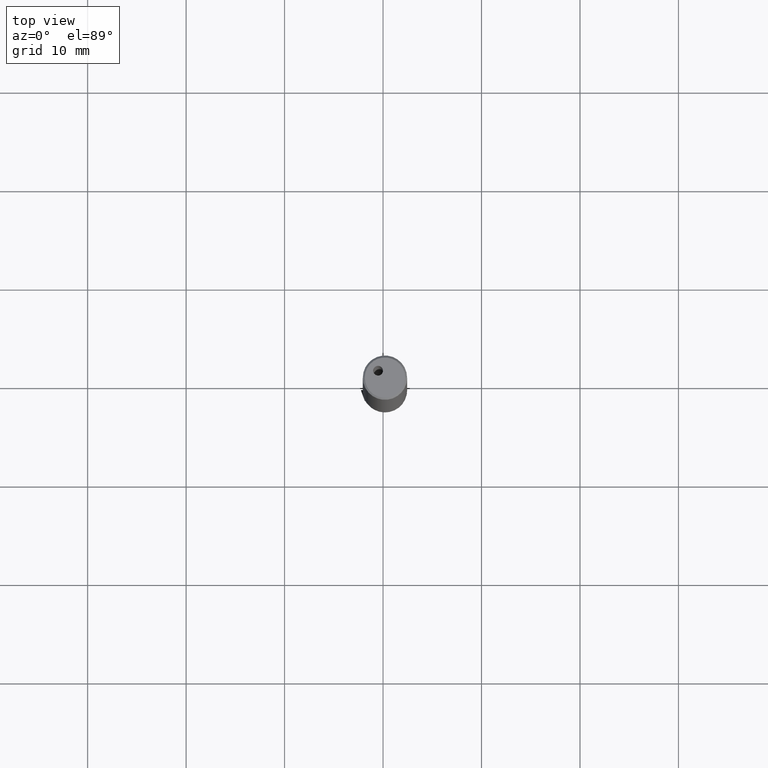
[diagram: clean part render]
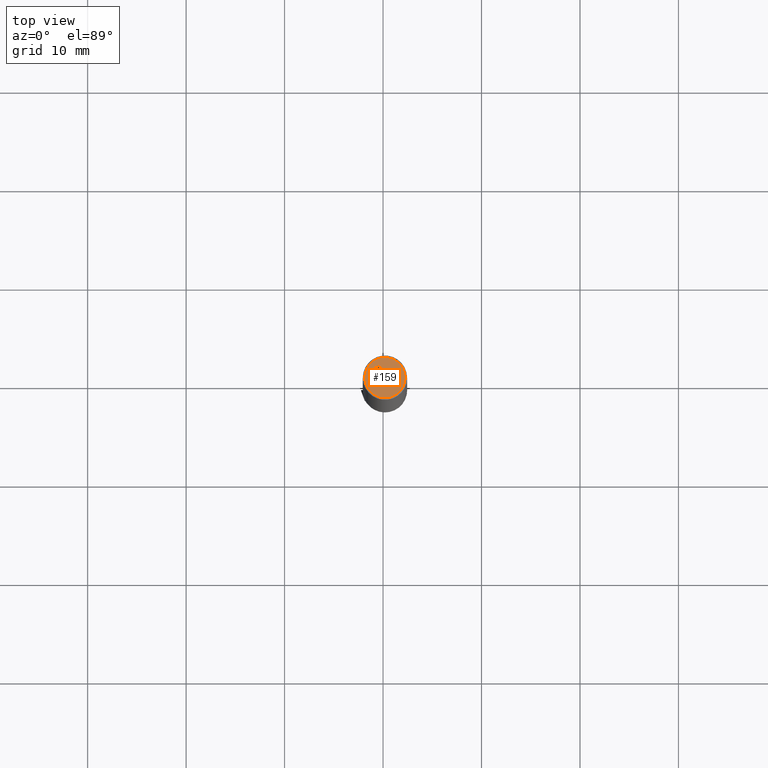
[diagram: same view with one face highlighted and labeled with its STEP entity id]
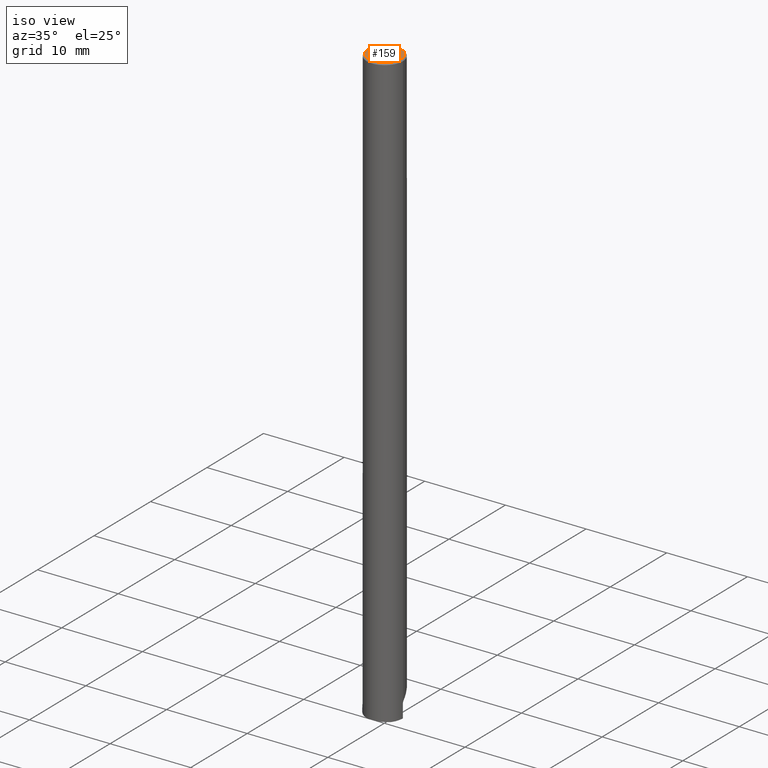
[diagram: same view with one face highlighted and labeled with its STEP entity id]
A machine part, top view. The second image highlights one B-rep face of the part: STEP entity #159.
A second angle (iso view) of the same face is appended — the face is thin or edge-on in the first view.
In plain terms, the highlighted planar face has unit normal (0, 0, -1).
Its self-contained STEP definition (entity closure, byte-faithful):
#157=VERTEX_POINT('NONE',#369);
#159=ADVANCED_FACE('NONE',(#371,#372),#373,.F.);
#207=VERTEX_POINT('NONE',#424);
#267=EDGE_CURVE('NONE',#297,#299,#492,.T.);
#273=EDGE_CURVE('NONE',#157,#207,#500,.T.);
#289=EDGE_CURVE('NONE',#299,#297,#518,.F.);
#297=VERTEX_POINT('NONE',#528);
#299=VERTEX_POINT('NONE',#530);
#303=EDGE_CURVE('NONE',#207,#157,#534,.F.);
#369=CARTESIAN_POINT('',(2.24365590078714,-0.193655900786654,0.0));
#371=FACE_OUTER_BOUND('',#615,.T.);
#372=FACE_BOUND('',#616,.T.);
#373=PLANE('',#617);
#424=CARTESIAN_POINT('',(-1.85634409921287,-0.193655900786639,0.0));
#492=CIRCLE('',#796,0.5);
#500=CIRCLE('',#844,2.05);
#518=CIRCLE('',#877,0.5);
#528=CARTESIAN_POINT('',(-1.00634409921286,0.506344099213358,0.0));
#530=CARTESIAN_POINT('',(-0.00634409921286203,0.506344099213354,0.0));
#534=CIRCLE('',#899,2.05);
#615=EDGE_LOOP('',(#964,#965));
#616=EDGE_LOOP('',(#966,#967));
#617=AXIS2_PLACEMENT_3D('',#968,#969,#970);
#796=AXIS2_PLACEMENT_3D('',#1099,#1100,#1101);
#844=AXIS2_PLACEMENT_3D('',#1114,#1115,#1116);
#877=AXIS2_PLACEMENT_3D('',#1140,#1141,#1142);
#899=AXIS2_PLACEMENT_3D('',#1157,#1158,#1159);
#964=ORIENTED_EDGE('',*,*,#303,.T.);
#965=ORIENTED_EDGE('',*,*,#273,.T.);
#966=ORIENTED_EDGE('',*,*,#289,.T.);
#967=ORIENTED_EDGE('',*,*,#267,.T.);
#968=CARTESIAN_POINT('',(0.193655900787135,-0.193655900786646,0.0));
#969=DIRECTION('',(0.0,0.0,-1.0));
#970=DIRECTION('',(-1.0,0.0,0.0));
#1099=CARTESIAN_POINT('',(-0.506344099212862,0.506344099213356,0.0));
#1100=DIRECTION('',(0.0,0.0,-1.0));
#1101=DIRECTION('',(1.0,-3.46944695195361E-015,0.0));
#1114=CARTESIAN_POINT('',(0.193655900787135,-0.193655900786646,0.0));
#1115=DIRECTION('',(0.0,0.0,1.0));
#1116=DIRECTION('',(-1.0,3.49060211629479E-015,0.0));
#1140=CARTESIAN_POINT('',(-0.506344099212862,0.506344099213356,0.0));
#1141=DIRECTION('',(-0.0,0.0,1.0));
#1142=DIRECTION('',(1.0,-3.46944695195361E-015,0.0));
#1157=CARTESIAN_POINT('',(0.193655900787135,-0.193655900786646,0.0));
#1158=DIRECTION('',(0.0,0.0,-1.0));
#1159=DIRECTION('',(-1.0,3.49060211629479E-015,0.0));